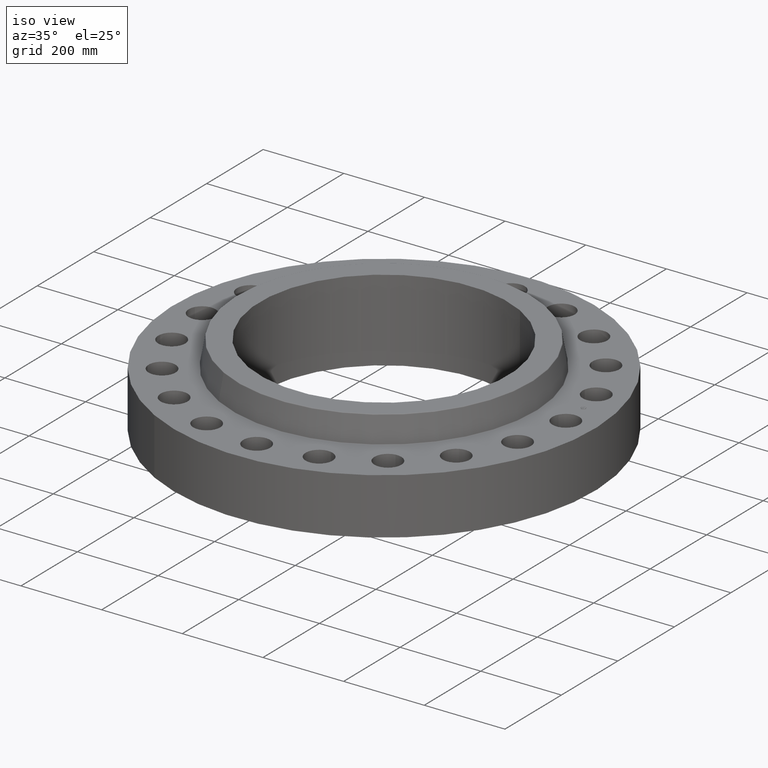
[diagram: clean part render]
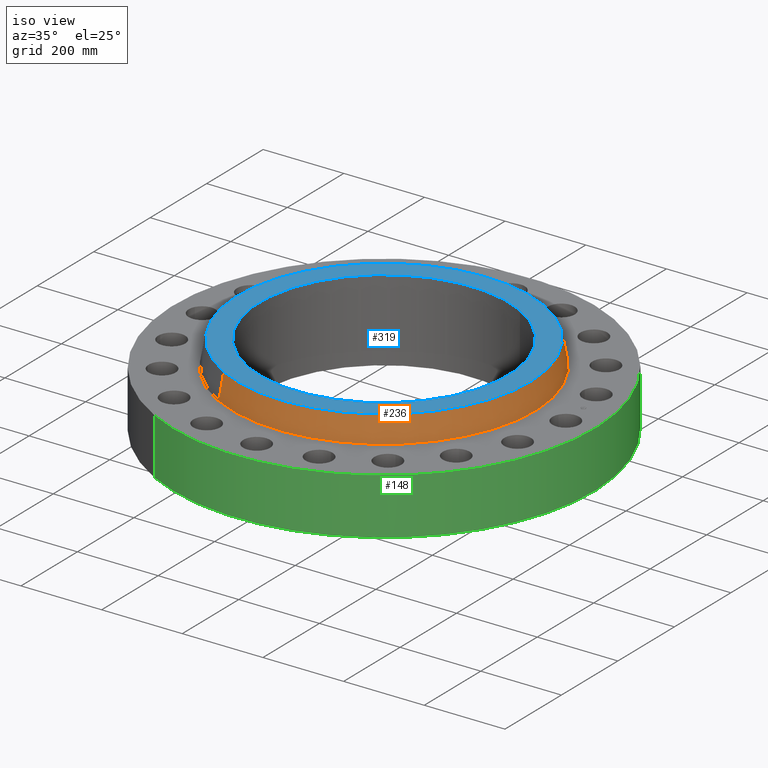
[diagram: same view with three faces highlighted in distinct colors, each labeled with its STEP entity id]
A machine part, iso view with three faces highlighted in distinct colors.
Their STEP definitions:

[orange] entity #236 — the highlighted conical surface has half-angle 10 deg.
#172=AXIS2_PLACEMENT_3D('Circle Axis2P3D',#170,#171,$) ;
#209=AXIS2_PLACEMENT_3D('Cone Axis2P3D',#206,#207,#208) ;
#220=AXIS2_PLACEMENT_3D('Circle Axis2P3D',#218,#219,$) ;
#167=CARTESIAN_POINT('Vertex',(7.06733532275,12.9366705335,5.54958110936)) ;
#170=CARTESIAN_POINT('Axis2P3D Location',(0.,0.,5.54958110936)) ;
#174=CARTESIAN_POINT('Vertex',(-7.06733532275,-12.9366705335,5.54958110936)) ;
#206=CARTESIAN_POINT('Axis2P3D Location',(0.,0.,7.95041889069)) ;
#211=CARTESIAN_POINT('Line Origine',(6.96585712232,12.7509159336,6.75000000003)) ;
#215=CARTESIAN_POINT('Vertex',(6.86437892189,12.5651613337,7.95041889069)) ;
#218=CARTESIAN_POINT('Axis2P3D Location',(0.,0.,7.95041889069)) ;
#222=CARTESIAN_POINT('Vertex',(-6.86437892189,-12.5651613337,7.95041889069)) ;
#225=CARTESIAN_POINT('Line Origine',(-6.96585712232,-12.7509159336,6.75000000003)) ;
#171=DIRECTION('Axis2P3D Direction',(0.,0.,-0.0393700787402)) ;
#207=DIRECTION('Axis2P3D Direction',(0.,0.,-0.0393700787402)) ;
#208=DIRECTION('Axis2P3D XDirection',(-0.0188750212049,-0.0345504945626,0.)) ;
#212=DIRECTION('Vector Direction',(0.00327761303565,0.00599963041829,-0.03877195878)) ;
#219=DIRECTION('Axis2P3D Direction',(0.,0.,-0.0393700787402)) ;
#226=DIRECTION('Vector Direction',(-0.00327761303565,-0.00599963041829,-0.03877195878)) ;
#213=VECTOR('Line Direction',#212,0.0393700787402) ;
#227=VECTOR('Line Direction',#226,0.0393700787402) ;
#231=ORIENTED_EDGE('',*,*,#176,.F.) ;
#232=ORIENTED_EDGE('',*,*,#217,.T.) ;
#233=ORIENTED_EDGE('',*,*,#224,.T.) ;
#234=ORIENTED_EDGE('',*,*,#229,.F.) ;
#236=ADVANCED_FACE('PartBody',(#235),#210,.T.) ;
#173=CIRCLE('generated circle',#172,14.7412575127) ;
#221=CIRCLE('generated circle',#220,14.3179250356) ;
#210=CONICAL_SURFACE('Cone',#209,14.3179250356,0.174532925199) ;
#176=EDGE_CURVE('',#168,#175,#173,.T.) ;
#217=EDGE_CURVE('',#168,#216,#214,.F.) ;
#224=EDGE_CURVE('',#216,#223,#221,.T.) ;
#229=EDGE_CURVE('',#175,#223,#228,.F.) ;
#230=EDGE_LOOP('',(#231,#232,#233,#234)) ;
#235=FACE_OUTER_BOUND('',#230,.T.) ;
#214=LINE('Line',#211,#213) ;
#228=LINE('Line',#225,#227) ;
#168=VERTEX_POINT('',#167) ;
#175=VERTEX_POINT('',#174) ;
#216=VERTEX_POINT('',#215) ;
#223=VERTEX_POINT('',#222) ;

[blue] entity #319 — the highlighted planar face has unit normal (0, 0, -1).
#263=AXIS2_PLACEMENT_3D('Circle Axis2P3D',#261,#262,$) ;
#282=AXIS2_PLACEMENT_3D('Circle Axis2P3D',#280,#281,$) ;
#295=AXIS2_PLACEMENT_3D('Plane Axis2P3D',#292,#293,#294) ;
#303=AXIS2_PLACEMENT_3D('Circle Axis2P3D',#301,#302,$) ;
#312=AXIS2_PLACEMENT_3D('Circle Axis2P3D',#310,#311,$) ;
#258=CARTESIAN_POINT('Vertex',(6.83605040264,12.513306327,8.00000000003)) ;
#261=CARTESIAN_POINT('Axis2P3D Location',(0.,0.,8.00000000003)) ;
#265=CARTESIAN_POINT('Vertex',(-6.83605040264,-12.513306327,8.00000000003)) ;
#280=CARTESIAN_POINT('Axis2P3D Location',(0.,0.,8.00000000003)) ;
#292=CARTESIAN_POINT('Axis2P3D Location',(0.,14.2588365704,8.00000000003)) ;
#301=CARTESIAN_POINT('Axis2P3D Location',(0.,0.,8.00000000003)) ;
#305=CARTESIAN_POINT('Vertex',(-5.8130346556,-10.640688563,8.00000000003)) ;
#307=CARTESIAN_POINT('Vertex',(5.8130346556,10.640688563,8.00000000003)) ;
#310=CARTESIAN_POINT('Axis2P3D Location',(0.,0.,8.00000000003)) ;
#262=DIRECTION('Axis2P3D Direction',(0.,0.,-0.0393700787402)) ;
#281=DIRECTION('Axis2P3D Direction',(0.,0.,-0.0393700787402)) ;
#293=DIRECTION('Axis2P3D Direction',(0.,0.,-0.0393700787402)) ;
#294=DIRECTION('Axis2P3D XDirection',(0.0393700787402,0.,0.)) ;
#302=DIRECTION('Axis2P3D Direction',(0.,0.,-0.0393700787402)) ;
#311=DIRECTION('Axis2P3D Direction',(0.,0.,-0.0393700787402)) ;
#298=ORIENTED_EDGE('',*,*,#267,.F.) ;
#299=ORIENTED_EDGE('',*,*,#284,.F.) ;
#316=ORIENTED_EDGE('',*,*,#309,.T.) ;
#317=ORIENTED_EDGE('',*,*,#314,.T.) ;
#318=FACE_BOUND('',#315,.T.) ;
#319=ADVANCED_FACE('PartBody',(#300,#318),#296,.F.) ;
#264=CIRCLE('generated circle',#263,14.2588365704) ;
#283=CIRCLE('generated circle',#282,14.2588365704) ;
#304=CIRCLE('generated circle',#303,12.125) ;
#313=CIRCLE('generated circle',#312,12.125) ;
#267=EDGE_CURVE('',#259,#266,#264,.T.) ;
#284=EDGE_CURVE('',#266,#259,#283,.T.) ;
#309=EDGE_CURVE('',#306,#308,#304,.T.) ;
#314=EDGE_CURVE('',#308,#306,#313,.T.) ;
#297=EDGE_LOOP('',(#298,#299)) ;
#315=EDGE_LOOP('',(#316,#317)) ;
#300=FACE_OUTER_BOUND('',#297,.T.) ;
#296=PLANE('',#295) ;
#259=VERTEX_POINT('',#258) ;
#266=VERTEX_POINT('',#265) ;
#306=VERTEX_POINT('',#305) ;
#308=VERTEX_POINT('',#307) ;

[green] entity #148 — the highlighted cylindrical surface (partial cylindrical patch) has radius 520.7 mm, axis along (0, 0, -1).
#95=AXIS2_PLACEMENT_3D('Cylinder Axis2P3D',#92,#93,#94) ;
#134=AXIS2_PLACEMENT_3D('Circle Axis2P3D',#132,#133,$) ;
#139=AXIS2_PLACEMENT_3D('Circle Axis2P3D',#137,#138,$) ;
#92=CARTESIAN_POINT('Axis2P3D Location',(0.,0.,4.00000000002)) ;
#101=CARTESIAN_POINT('Vertex',(-9.82822354143,-17.9904425188,2.23792987641E-015)) ;
#103=CARTESIAN_POINT('Vertex',(9.82822354143,17.9904425188,2.23792987641E-015)) ;
#106=CARTESIAN_POINT('Line Origine',(-9.82822354143,-17.9904425188,2.75000000001)) ;
#110=CARTESIAN_POINT('Vertex',(-9.82822354143,-17.9904425188,5.50000000002)) ;
#117=CARTESIAN_POINT('Vertex',(9.82822354143,17.9904425188,5.50000000002)) ;
#120=CARTESIAN_POINT('Line Origine',(9.82822354143,17.9904425188,2.75000000001)) ;
#132=CARTESIAN_POINT('Axis2P3D Location',(0.,0.,2.23792987641E-015)) ;
#137=CARTESIAN_POINT('Axis2P3D Location',(0.,0.,5.50000000002)) ;
#93=DIRECTION('Axis2P3D Direction',(0.,0.,-0.0393700787402)) ;
#94=DIRECTION('Axis2P3D XDirection',(0.0188750212049,0.0345504945626,0.)) ;
#107=DIRECTION('Vector Direction',(0.,0.,-0.0393700787402)) ;
#121=DIRECTION('Vector Direction',(0.,0.,-0.0393700787402)) ;
#133=DIRECTION('Axis2P3D Direction',(0.,0.,-0.0393700787402)) ;
#138=DIRECTION('Axis2P3D Direction',(0.,0.,-0.0393700787402)) ;
#108=VECTOR('Line Direction',#107,0.0393700787402) ;
#122=VECTOR('Line Direction',#121,0.0393700787402) ;
#143=ORIENTED_EDGE('',*,*,#136,.F.) ;
#144=ORIENTED_EDGE('',*,*,#124,.T.) ;
#145=ORIENTED_EDGE('',*,*,#141,.T.) ;
#146=ORIENTED_EDGE('',*,*,#112,.F.) ;
#148=ADVANCED_FACE('PartBody',(#147),#96,.T.) ;
#135=CIRCLE('generated circle',#134,20.5000000001) ;
#140=CIRCLE('generated circle',#139,20.5000000001) ;
#96=CYLINDRICAL_SURFACE('generated cylinder',#95,20.5000000001) ;
#112=EDGE_CURVE('',#102,#111,#109,.F.) ;
#124=EDGE_CURVE('',#104,#118,#123,.F.) ;
#136=EDGE_CURVE('',#104,#102,#135,.T.) ;
#141=EDGE_CURVE('',#118,#111,#140,.T.) ;
#142=EDGE_LOOP('',(#143,#144,#145,#146)) ;
#147=FACE_OUTER_BOUND('',#142,.T.) ;
#109=LINE('Line',#106,#108) ;
#123=LINE('Line',#120,#122) ;
#102=VERTEX_POINT('',#101) ;
#104=VERTEX_POINT('',#103) ;
#111=VERTEX_POINT('',#110) ;
#118=VERTEX_POINT('',#117) ;